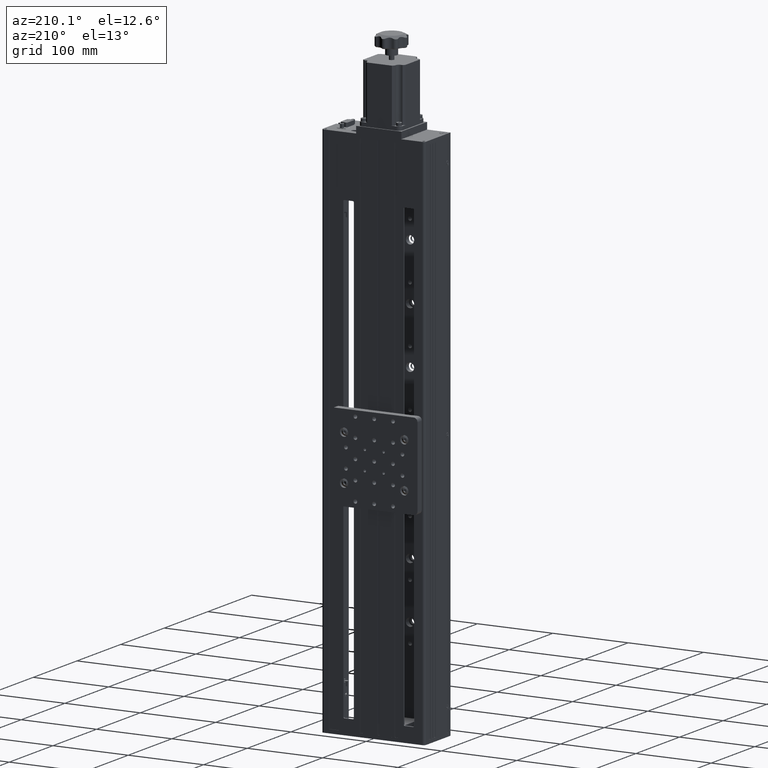
[diagram: clean part render]
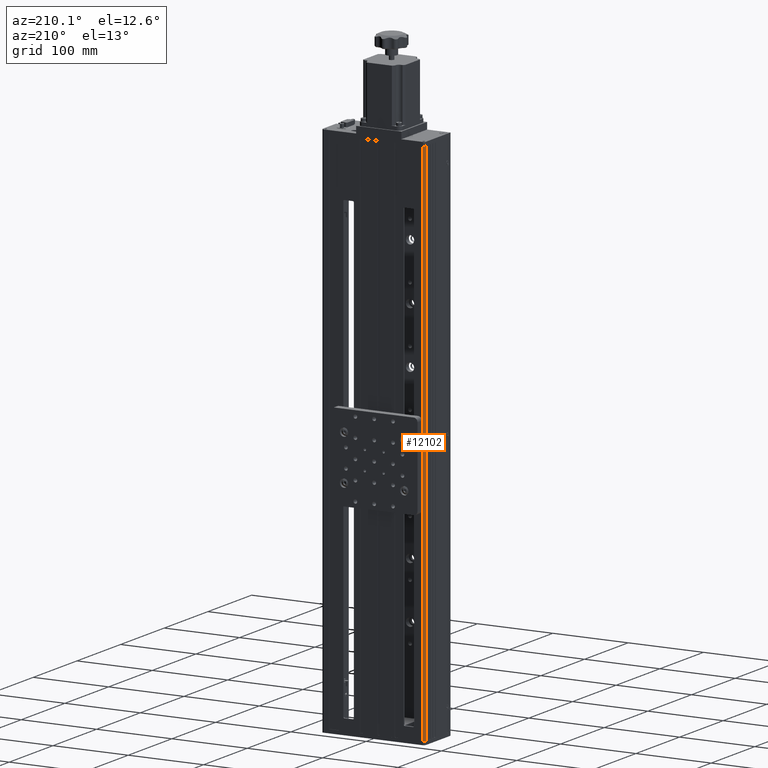
[diagram: same view with one face highlighted and labeled with its STEP entity id]
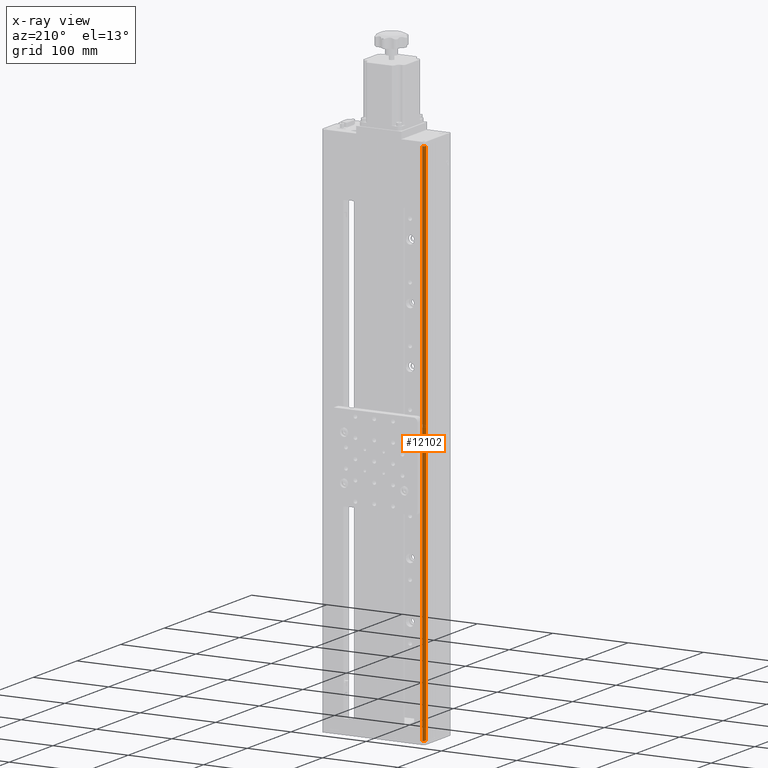
[diagram: x-ray of the same camera — body ghosted, the highlighted face saturated]
A machine part, auxiliary view. The second image highlights one B-rep face of the part: STEP entity #12102.
The next image is the same camera in x-ray: the body ghosted, the highlighted face saturated — about 0% of this face is hidden behind the body in this view.
In plain terms, the highlighted cylindrical surface (edge-blend (fillet) strip) has radius 3 mm, axis along (-0, -0, -1).
Its self-contained STEP definition (entity closure, byte-faithful):
#1135 = EDGE_CURVE ( 'NONE', #41442, #10061, #6083, .T. ) ;
#1990 = DIRECTION ( 'NONE',  ( -0.0000000000000000000, -0.0000000000000000000, -1.000000000000000000 ) ) ;
#3863 = CARTESIAN_POINT ( 'NONE',  ( -194.2356926832512400, 33.82987360368544900, 101.1657323667232800 ) ) ;
#5585 = AXIS2_PLACEMENT_3D ( 'NONE', #12820, #31822, #35164 ) ;
#6007 = DIRECTION ( 'NONE',  ( 0.0000000000000000000, 0.0000000000000000000, 1.000000000000000000 ) ) ;
#6083 = LINE ( 'NONE', #18094, #39147 ) ;
#7910 = VECTOR ( 'NONE', #10031, 1000.000000000000000 ) ;
#7983 = CIRCLE ( 'NONE', #19946, 3.000000000000002700 ) ;
#8025 = ORIENTED_EDGE ( 'NONE', *, *, #14764, .T. ) ;
#9793 = CARTESIAN_POINT ( 'NONE',  ( -194.2356926832512400, 33.82987360368544900, -598.8342676332768000 ) ) ;
#9939 = EDGE_CURVE ( 'NONE', #14549, #41442, #31133, .T. ) ;
#10031 = DIRECTION ( 'NONE',  ( -0.0000000000000000000, -0.0000000000000000000, -1.000000000000000000 ) ) ;
#10061 = VERTEX_POINT ( 'NONE', #37476 ) ;
#10646 = CARTESIAN_POINT ( 'NONE',  ( -194.2356926832512400, 33.82987360368544900, 101.1657323667232800 ) ) ;
#11856 = ORIENTED_EDGE ( 'NONE', *, *, #9939, .F. ) ;
#12102 = ADVANCED_FACE ( 'NONE', ( #23392 ), #27867, .T. ) ;
#12820 = CARTESIAN_POINT ( 'NONE',  ( -194.2356926832512400, 30.82987360368544900, 101.1657323667232800 ) ) ;
#14549 = VERTEX_POINT ( 'NONE', #10646 ) ;
#14764 = EDGE_CURVE ( 'NONE', #25840, #10061, #7983, .T. ) ;
#18094 = CARTESIAN_POINT ( 'NONE',  ( -197.2356926832512400, 30.82987360368544900, 101.1657323667232800 ) ) ;
#19946 = AXIS2_PLACEMENT_3D ( 'NONE', #25175, #6007, #28401 ) ;
#23392 = FACE_OUTER_BOUND ( 'NONE', #36468, .T. ) ;
#25175 = CARTESIAN_POINT ( 'NONE',  ( -194.2356926832512400, 30.82987360368544900, -598.8342676332768000 ) ) ;
#25302 = AXIS2_PLACEMENT_3D ( 'NONE', #38630, #38580, #38572 ) ;
#25840 = VERTEX_POINT ( 'NONE', #9793 ) ;
#26359 = ORIENTED_EDGE ( 'NONE', *, *, #26601, .T. ) ;
#26601 = EDGE_CURVE ( 'NONE', #14549, #25840, #33492, .T. ) ;
#27125 = CARTESIAN_POINT ( 'NONE',  ( -197.2356926832512400, 30.82987360368544900, 101.1657323667232800 ) ) ;
#27867 = CYLINDRICAL_SURFACE ( 'NONE', #5585, 3.000000000000002700 ) ;
#28401 = DIRECTION ( 'NONE',  ( 1.000000000000000000, 0.0000000000000000000, 0.0000000000000000000 ) ) ;
#31133 = CIRCLE ( 'NONE', #25302, 3.000000000000002700 ) ;
#31822 = DIRECTION ( 'NONE',  ( -0.0000000000000000000, -0.0000000000000000000, -1.000000000000000000 ) ) ;
#33492 = LINE ( 'NONE', #3863, #7910 ) ;
#35164 = DIRECTION ( 'NONE',  ( -1.000000000000000000, 0.0000000000000000000, 0.0000000000000000000 ) ) ;
#36468 = EDGE_LOOP ( 'NONE', ( #8025, #36685, #11856, #26359 ) ) ;
#36685 = ORIENTED_EDGE ( 'NONE', *, *, #1135, .F. ) ;
#37476 = CARTESIAN_POINT ( 'NONE',  ( -197.2356926832512400, 30.82987360368544900, -598.8342676332768000 ) ) ;
#38572 = DIRECTION ( 'NONE',  ( 1.000000000000000000, 0.0000000000000000000, 0.0000000000000000000 ) ) ;
#38580 = DIRECTION ( 'NONE',  ( 0.0000000000000000000, 0.0000000000000000000, 1.000000000000000000 ) ) ;
#38630 = CARTESIAN_POINT ( 'NONE',  ( -194.2356926832512400, 30.82987360368544900, 101.1657323667232800 ) ) ;
#39147 = VECTOR ( 'NONE', #1990, 1000.000000000000000 ) ;
#41442 = VERTEX_POINT ( 'NONE', #27125 ) ;